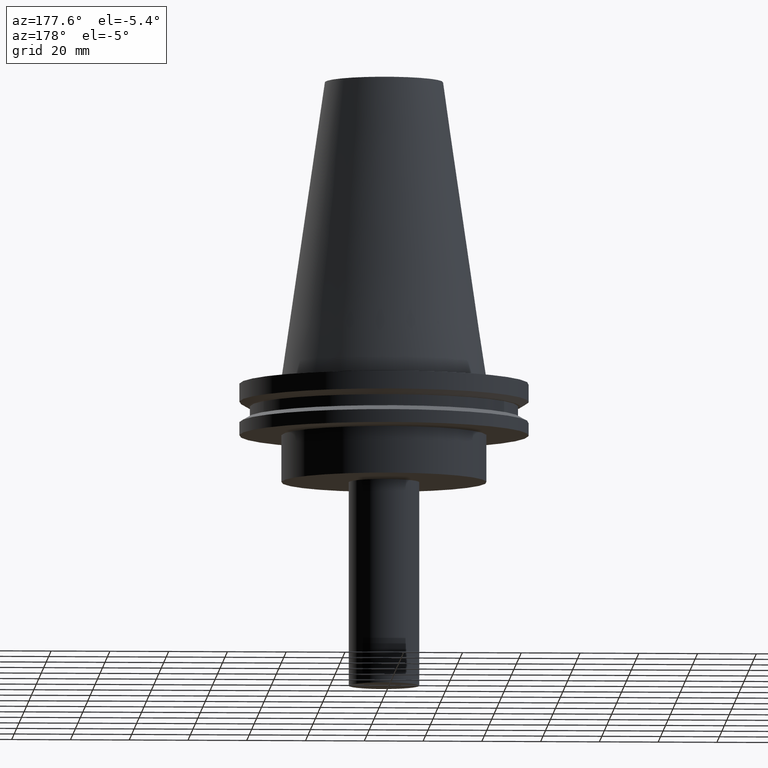
[diagram: clean part render]
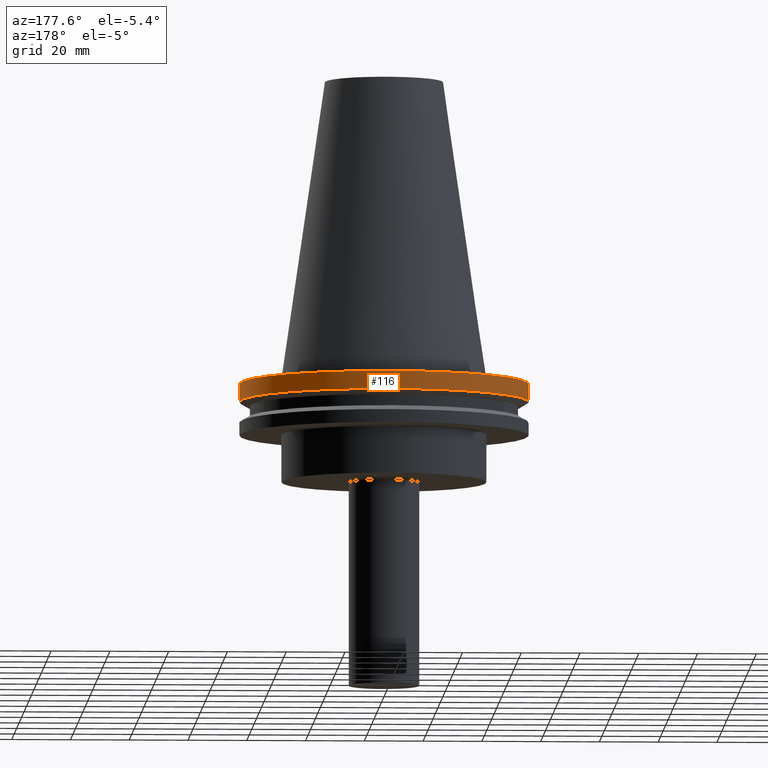
[diagram: same view with one face highlighted and labeled with its STEP entity id]
A machine part, auxiliary view. The second image highlights one B-rep face of the part: STEP entity #116.
In plain terms, the highlighted cylindrical surface (bore or boss wall) has radius 49.215 mm, axis along (-0, -0, 1).
Its self-contained STEP definition (entity closure, byte-faithful):
#2 = ORIENTED_EDGE ( 'NONE', *, *, #318, .F. ) ;
#41 = CIRCLE ( 'NONE', #241, 49.21500000000000341 ) ;
#48 = DIRECTION ( 'NONE',  ( -0.000000000000000000, -0.000000000000000000, 1.000000000000000000 ) ) ;
#67 = DIRECTION ( 'NONE',  ( 1.000000000000000000, 0.000000000000000000, 0.000000000000000000 ) ) ;
#71 = EDGE_CURVE ( 'NONE', #119, #119, #41, .T. ) ;
#100 = EDGE_LOOP ( 'NONE', ( #2 ) ) ;
#114 = CIRCLE ( 'NONE', #353, 49.21499999999999631 ) ;
#115 = CARTESIAN_POINT ( 'NONE',  ( 0.000000000000000000, 0.000000000000000000, -1.499999999999987566 ) ) ;
#116 = ADVANCED_FACE ( 'NONE', ( #222, #138 ), #316, .T. ) ;
#119 = VERTEX_POINT ( 'NONE', #378 ) ;
#122 = CARTESIAN_POINT ( 'NONE',  ( 49.21499999999999631, 0.000000000000000000, -1.499999999999987566 ) ) ;
#123 = EDGE_LOOP ( 'NONE', ( #158 ) ) ;
#138 = FACE_OUTER_BOUND ( 'NONE', #123, .T. ) ;
#158 = ORIENTED_EDGE ( 'NONE', *, *, #71, .T. ) ;
#162 = DIRECTION ( 'NONE',  ( 1.000000000000000000, 0.000000000000000000, 0.000000000000000000 ) ) ;
#200 = DIRECTION ( 'NONE',  ( 1.000000000000000000, 0.000000000000000000, 0.000000000000000000 ) ) ;
#222 = FACE_OUTER_BOUND ( 'NONE', #100, .T. ) ;
#241 = AXIS2_PLACEMENT_3D ( 'NONE', #308, #335, #67 ) ;
#260 = AXIS2_PLACEMENT_3D ( 'NONE', #341, #313, #162 ) ;
#269 = VERTEX_POINT ( 'NONE', #122 ) ;
#308 = CARTESIAN_POINT ( 'NONE',  ( 0.000000000000000000, 0.000000000000000000, -7.602389855251287187 ) ) ;
#313 = DIRECTION ( 'NONE',  ( -0.000000000000000000, -0.000000000000000000, 1.000000000000000000 ) ) ;
#316 = CYLINDRICAL_SURFACE ( 'NONE', #260, 49.21499999999999631 ) ;
#318 = EDGE_CURVE ( 'NONE', #269, #269, #114, .T. ) ;
#335 = DIRECTION ( 'NONE',  ( -0.000000000000000000, -0.000000000000000000, 1.000000000000000000 ) ) ;
#341 = CARTESIAN_POINT ( 'NONE',  ( 0.000000000000000000, 0.000000000000000000, 101.5999999999999943 ) ) ;
#353 = AXIS2_PLACEMENT_3D ( 'NONE', #115, #48, #200 ) ;
#378 = CARTESIAN_POINT ( 'NONE',  ( 49.21500000000000341, 0.000000000000000000, -7.602389855251287187 ) ) ;